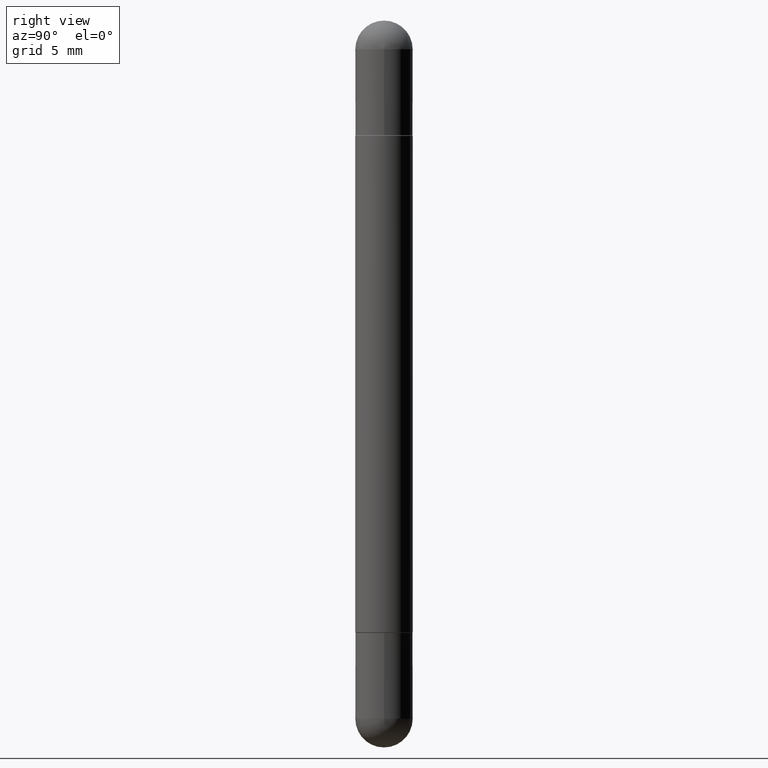
[diagram: clean part render]
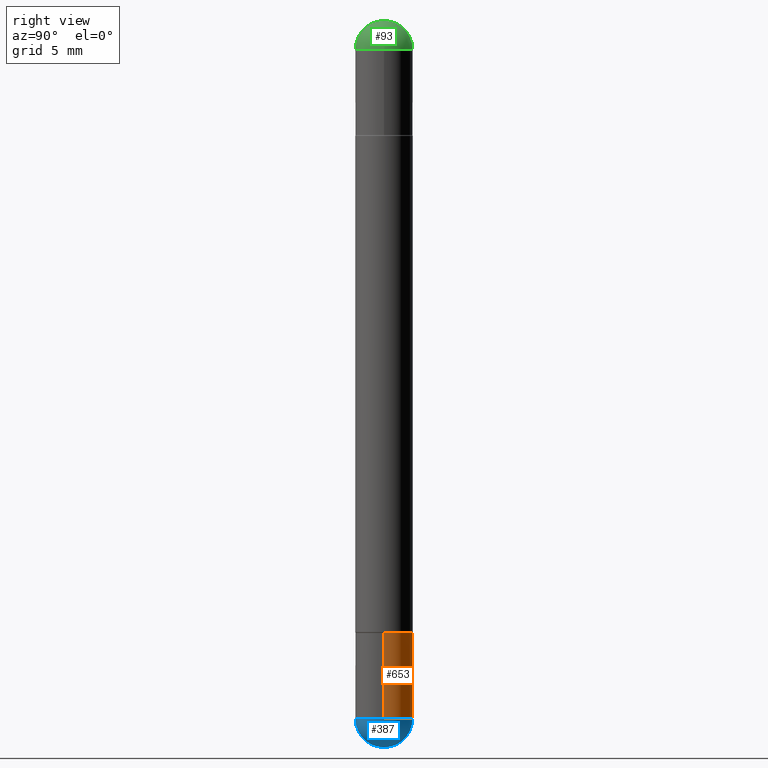
[diagram: same view with three faces highlighted in distinct colors, each labeled with its STEP entity id]
A machine part, right view with three faces highlighted in distinct colors.
Their STEP definitions:

[orange] entity #653 — the highlighted cylindrical surface (edge-blend (fillet) strip) has radius 1.4999 mm, axis along (-0, 0, 1).
#12 = CARTESIAN_POINT ( 'NONE',  ( -0.05905000000000001914, -4.288599812930171320E-15, -1.437049999999999939 ) ) ;
#18 = LINE ( 'NONE', #67, #251 ) ;
#20 = CARTESIAN_POINT ( 'NONE',  ( -0.05905000000000001914, -4.288599812930171320E-15, -1.259899999999999798 ) ) ;
#43 = VERTEX_POINT ( 'NONE', #225 ) ;
#67 = CARTESIAN_POINT ( 'NONE',  ( -0.05905000000000001914, 4.195754854663392958E-16, -2.904631170795522943E-30 ) ) ;
#104 = AXIS2_PLACEMENT_3D ( 'NONE', #762, #195, #124 ) ;
#122 = EDGE_CURVE ( 'NONE', #371, #632, #656, .T. ) ;
#124 = DIRECTION ( 'NONE',  ( 1.000000000000000000, -6.982962677686270655E-15, 0.000000000000000000 ) ) ;
#126 = CARTESIAN_POINT ( 'NONE',  ( 0.000000000000000000, 0.000000000000000000, 0.000000000000000000 ) ) ;
#131 = AXIS2_PLACEMENT_3D ( 'NONE', #454, #372, #627 ) ;
#156 = EDGE_CURVE ( 'NONE', #43, #346, #226, .T. ) ;
#158 = AXIS2_PLACEMENT_3D ( 'NONE', #301, #689, #505 ) ;
#161 = VECTOR ( 'NONE', #397, 39.37007874015748143 ) ;
#195 = DIRECTION ( 'NONE',  ( -2.445468806185136597E-29, 3.491481338843145583E-15, 1.000000000000000000 ) ) ;
#225 = CARTESIAN_POINT ( 'NONE',  ( 0.05905000000000001914, -4.811261284925853162E-15, -1.259899999999999798 ) ) ;
#226 = CIRCLE ( 'NONE', #158, 0.05905000000000001914 ) ;
#227 = AXIS2_PLACEMENT_3D ( 'NONE', #126, #558, #253 ) ;
#234 = ORIENTED_EDGE ( 'NONE', *, *, #772, .F. ) ;
#245 = CARTESIAN_POINT ( 'NONE',  ( 0.05905000000000001914, -5.120519244513884944E-15, -1.437049999999999939 ) ) ;
#251 = VECTOR ( 'NONE', #640, 39.37007874015748143 ) ;
#253 = DIRECTION ( 'NONE',  ( 1.000000000000000000, -6.982962677686266711E-15, 4.876176775795935793E-29 ) ) ;
#268 = ORIENTED_EDGE ( 'NONE', *, *, #583, .T. ) ;
#274 = CARTESIAN_POINT ( 'NONE',  ( 0.05905000000000001914, -4.123439461173741806E-16, 2.879382386107500921E-30 ) ) ;
#278 = ORIENTED_EDGE ( 'NONE', *, *, #122, .T. ) ;
#301 = CARTESIAN_POINT ( 'NONE',  ( 3.081046148912652946E-29, -4.398917338808479031E-15, -1.259899999999999798 ) ) ;
#312 = CIRCLE ( 'NONE', #131, 0.05905000000000001914 ) ;
#346 = VERTEX_POINT ( 'NONE', #20 ) ;
#368 = ORIENTED_EDGE ( 'NONE', *, *, #676, .T. ) ;
#371 = VERTEX_POINT ( 'NONE', #741 ) ;
#372 = DIRECTION ( 'NONE',  ( -2.445468806185136597E-29, 3.491481338843145583E-15, 1.000000000000000000 ) ) ;
#380 = FACE_OUTER_BOUND ( 'NONE', #486, .T. ) ;
#397 = DIRECTION ( 'NONE',  ( -2.445468806185136877E-29, 3.491481338843145188E-15, 1.000000000000000000 ) ) ;
#400 = LINE ( 'NONE', #274, #161 ) ;
#454 = CARTESIAN_POINT ( 'NONE',  ( 3.514260947928350449E-29, -5.017433257984542594E-15, -1.437049999999999939 ) ) ;
#486 = EDGE_LOOP ( 'NONE', ( #278, #268, #738, #234, #368 ) ) ;
#505 = DIRECTION ( 'NONE',  ( 1.000000000000000000, -6.982962677686270655E-15, 0.000000000000000000 ) ) ;
#515 = CYLINDRICAL_SURFACE ( 'NONE', #227, 0.05905000000000001914 ) ;
#558 = DIRECTION ( 'NONE',  ( -2.445468806185136597E-29, 3.491481338843145583E-15, 1.000000000000000000 ) ) ;
#583 = EDGE_CURVE ( 'NONE', #632, #346, #18, .T. ) ;
#627 = DIRECTION ( 'NONE',  ( 1.000000000000000000, -6.982962677686270655E-15, 0.000000000000000000 ) ) ;
#632 = VERTEX_POINT ( 'NONE', #12 ) ;
#640 = DIRECTION ( 'NONE',  ( -2.445468806185136877E-29, 3.491481338843145188E-15, 1.000000000000000000 ) ) ;
#653 = ADVANCED_FACE ( 'NONE', ( #380 ), #515, .T. ) ;
#656 = CIRCLE ( 'NONE', #104, 0.05905000000000001914 ) ;
#676 = EDGE_CURVE ( 'NONE', #815, #371, #312, .T. ) ;
#689 = DIRECTION ( 'NONE',  ( -2.445468806185136597E-29, 3.491481338843145583E-15, 1.000000000000000000 ) ) ;
#738 = ORIENTED_EDGE ( 'NONE', *, *, #156, .F. ) ;
#741 = CARTESIAN_POINT ( 'NONE',  ( 4.123439461174084467E-16, 0.05904999999999487742, -1.437050000000000161 ) ) ;
#762 = CARTESIAN_POINT ( 'NONE',  ( 3.514260947928350449E-29, -5.017433257984542594E-15, -1.437049999999999939 ) ) ;
#772 = EDGE_CURVE ( 'NONE', #815, #43, #400, .T. ) ;
#815 = VERTEX_POINT ( 'NONE', #245 ) ;

[blue] entity #387 — the highlighted spherical surface has radius 1.4999 mm.
#21 = ORIENTED_EDGE ( 'NONE', *, *, #402, .F. ) ;
#24 = ORIENTED_EDGE ( 'NONE', *, *, #150, .T. ) ;
#36 = DIRECTION ( 'NONE',  ( -7.105427357601001070E-15, -1.000000000000000000, 0.000000000000000000 ) ) ;
#40 = CARTESIAN_POINT ( 'NONE',  ( 3.183141170014464762E-29, -5.491615626124592102E-15, -1.437049999999999939 ) ) ;
#69 = VERTEX_POINT ( 'NONE', #359 ) ;
#94 = VERTEX_POINT ( 'NONE', #165 ) ;
#131 = AXIS2_PLACEMENT_3D ( 'NONE', #454, #372, #627 ) ;
#150 = EDGE_CURVE ( 'NONE', #69, #371, #559, .T. ) ;
#159 = CIRCLE ( 'NONE', #526, 0.05905000000000025506 ) ;
#164 = DIRECTION ( 'NONE',  ( 6.982962677686265922E-15, 1.000000000000000000, -4.626330217890349615E-15 ) ) ;
#165 = CARTESIAN_POINT ( 'NONE',  ( -4.195754854663065087E-16, -0.05905000000000539678, -1.437049999999999716 ) ) ;
#171 = DIRECTION ( 'NONE',  ( 1.000000000000000000, -6.982962677686270655E-15, 0.000000000000000000 ) ) ;
#191 = CARTESIAN_POINT ( 'NONE',  ( 3.183141170014464762E-29, -5.491615626124592102E-15, -1.437049999999999939 ) ) ;
#197 = ORIENTED_EDGE ( 'NONE', *, *, #508, .F. ) ;
#237 = DIRECTION ( 'NONE',  ( -1.000000000000000000, 6.982962677686265922E-15, -4.883557194083112340E-29 ) ) ;
#245 = CARTESIAN_POINT ( 'NONE',  ( 0.05905000000000001914, -5.120519244513884944E-15, -1.437049999999999939 ) ) ;
#312 = CIRCLE ( 'NONE', #131, 0.05905000000000001914 ) ;
#348 = DIRECTION ( 'NONE',  ( -1.000000000000000000, 7.105427357601001070E-15, -4.926315508542082329E-29 ) ) ;
#359 = CARTESIAN_POINT ( 'NONE',  ( 3.330070981488499955E-29, -5.694171829508798064E-15, -1.496100000000000207 ) ) ;
#371 = VERTEX_POINT ( 'NONE', #741 ) ;
#372 = DIRECTION ( 'NONE',  ( -2.445468806185136597E-29, 3.491481338843145583E-15, 1.000000000000000000 ) ) ;
#387 = ADVANCED_FACE ( 'NONE', ( #481 ), #752, .T. ) ;
#392 = AXIS2_PLACEMENT_3D ( 'NONE', #533, #673, #171 ) ;
#402 = EDGE_CURVE ( 'NONE', #94, #815, #606, .T. ) ;
#441 = DIRECTION ( 'NONE',  ( 6.982962677686266711E-15, 1.000000000000000000, 0.000000000000000000 ) ) ;
#454 = CARTESIAN_POINT ( 'NONE',  ( 3.514260947928350449E-29, -5.017433257984542594E-15, -1.437049999999999939 ) ) ;
#481 = FACE_OUTER_BOUND ( 'NONE', #747, .T. ) ;
#508 = EDGE_CURVE ( 'NONE', #69, #94, #159, .T. ) ;
#510 = AXIS2_PLACEMENT_3D ( 'NONE', #191, #703, #441 ) ;
#526 = AXIS2_PLACEMENT_3D ( 'NONE', #667, #348, #36 ) ;
#533 = CARTESIAN_POINT ( 'NONE',  ( 3.514260947928350449E-29, -5.017433257984542594E-15, -1.437049999999999939 ) ) ;
#551 = ORIENTED_EDGE ( 'NONE', *, *, #676, .F. ) ;
#559 = CIRCLE ( 'NONE', #510, 0.05905000000000025506 ) ;
#606 = CIRCLE ( 'NONE', #392, 0.05905000000000001914 ) ;
#627 = DIRECTION ( 'NONE',  ( 1.000000000000000000, -6.982962677686270655E-15, 0.000000000000000000 ) ) ;
#667 = CARTESIAN_POINT ( 'NONE',  ( 3.183141170014464762E-29, -5.491615626124592102E-15, -1.437049999999999939 ) ) ;
#673 = DIRECTION ( 'NONE',  ( -2.445468806185136597E-29, 3.491481338843145583E-15, 1.000000000000000000 ) ) ;
#676 = EDGE_CURVE ( 'NONE', #815, #371, #312, .T. ) ;
#703 = DIRECTION ( 'NONE',  ( 1.000000000000000000, -6.982962677686265922E-15, 4.883557194083112340E-29 ) ) ;
#741 = CARTESIAN_POINT ( 'NONE',  ( 4.123439461174084467E-16, 0.05904999999999487742, -1.437050000000000161 ) ) ;
#747 = EDGE_LOOP ( 'NONE', ( #197, #24, #551, #21 ) ) ;
#752 = SPHERICAL_SURFACE ( 'NONE', #780, 0.05905000000000025506 ) ;
#780 = AXIS2_PLACEMENT_3D ( 'NONE', #40, #237, #164 ) ;
#815 = VERTEX_POINT ( 'NONE', #245 ) ;

[green] entity #93 — the highlighted spherical surface has radius 1.4999 mm.
#93 = ADVANCED_FACE ( 'NONE', ( #288 ), #244, .T. ) ;
#99 = VERTEX_POINT ( 'NONE', #550 ) ;
#101 = CARTESIAN_POINT ( 'NONE',  ( 3.183141170014464762E-29, -5.491615626124592102E-15, -0.05905000000000028976 ) ) ;
#120 = CARTESIAN_POINT ( 'NONE',  ( 3.183141170014464762E-29, -5.491615626124592102E-15, -0.05905000000000028976 ) ) ;
#121 = VERTEX_POINT ( 'NONE', #247 ) ;
#142 = VERTEX_POINT ( 'NONE', #304 ) ;
#149 = DIRECTION ( 'NONE',  ( 1.000000000000000000, -6.982962677686270655E-15, 0.000000000000000000 ) ) ;
#190 = DIRECTION ( 'NONE',  ( 1.000000000000000000, -6.982962677686270655E-15, 0.000000000000000000 ) ) ;
#212 = CIRCLE ( 'NONE', #239, 0.05905000000000001914 ) ;
#239 = AXIS2_PLACEMENT_3D ( 'NONE', #770, #756, #190 ) ;
#244 = SPHERICAL_SURFACE ( 'NONE', #311, 0.05905000000000025506 ) ;
#247 = CARTESIAN_POINT ( 'NONE',  ( 4.123439461174084467E-16, 0.05904999999999487742, -0.05905000000000008159 ) ) ;
#252 = ORIENTED_EDGE ( 'NONE', *, *, #452, .F. ) ;
#279 = CARTESIAN_POINT ( 'NONE',  ( 3.514260947928350449E-29, -5.017433257984542594E-15, -0.05905000000000028976 ) ) ;
#285 = CARTESIAN_POINT ( 'NONE',  ( 3.183141170014464762E-29, -5.491615626124592102E-15, -0.05905000000000028976 ) ) ;
#288 = FACE_OUTER_BOUND ( 'NONE', #419, .T. ) ;
#291 = AXIS2_PLACEMENT_3D ( 'NONE', #101, #475, #407 ) ;
#299 = CIRCLE ( 'NONE', #291, 0.05905000000000025506 ) ;
#304 = CARTESIAN_POINT ( 'NONE',  ( 0.05905000000000001914, -5.120519244513884944E-15, -0.05905000000000028976 ) ) ;
#311 = AXIS2_PLACEMENT_3D ( 'NONE', #120, #370, #367 ) ;
#352 = ORIENTED_EDGE ( 'NONE', *, *, #701, .T. ) ;
#367 = DIRECTION ( 'NONE',  ( 6.982962677686265922E-15, 1.000000000000000000, 3.469747663417762014E-15 ) ) ;
#370 = DIRECTION ( 'NONE',  ( 1.000000000000000000, -6.982962677686265922E-15, -4.883557194083112340E-29 ) ) ;
#407 = DIRECTION ( 'NONE',  ( 6.860497997771530774E-15, 1.000000000000000000, 0.000000000000000000 ) ) ;
#419 = EDGE_LOOP ( 'NONE', ( #252, #431, #644, #352 ) ) ;
#431 = ORIENTED_EDGE ( 'NONE', *, *, #495, .T. ) ;
#452 = EDGE_CURVE ( 'NONE', #99, #121, #548, .T. ) ;
#457 = DIRECTION ( 'NONE',  ( 2.445468806185136597E-29, -3.491481338843145583E-15, 1.000000000000000000 ) ) ;
#475 = DIRECTION ( 'NONE',  ( 1.000000000000000000, -6.860497997771530774E-15, -4.840798879624142912E-29 ) ) ;
#495 = EDGE_CURVE ( 'NONE', #99, #782, #299, .T. ) ;
#543 = DIRECTION ( 'NONE',  ( -1.000000000000000000, 6.982962677686265922E-15, 4.883557194083112340E-29 ) ) ;
#548 = CIRCLE ( 'NONE', #657, 0.05905000000000025506 ) ;
#550 = CARTESIAN_POINT ( 'NONE',  ( 3.330070981488499955E-29, -5.694171829508798064E-15, -3.414809992080329023E-17 ) ) ;
#590 = CIRCLE ( 'NONE', #700, 0.05905000000000001914 ) ;
#644 = ORIENTED_EDGE ( 'NONE', *, *, #672, .T. ) ;
#650 = CARTESIAN_POINT ( 'NONE',  ( -4.051124067683763770E-16, -0.05905000000000539678, -0.05905000000000049099 ) ) ;
#655 = DIRECTION ( 'NONE',  ( -6.982962677686266711E-15, -1.000000000000000000, 0.000000000000000000 ) ) ;
#657 = AXIS2_PLACEMENT_3D ( 'NONE', #285, #543, #655 ) ;
#672 = EDGE_CURVE ( 'NONE', #782, #142, #212, .T. ) ;
#700 = AXIS2_PLACEMENT_3D ( 'NONE', #279, #457, #149 ) ;
#701 = EDGE_CURVE ( 'NONE', #142, #121, #590, .T. ) ;
#756 = DIRECTION ( 'NONE',  ( 2.445468806185136597E-29, -3.491481338843145583E-15, 1.000000000000000000 ) ) ;
#770 = CARTESIAN_POINT ( 'NONE',  ( 3.514260947928350449E-29, -5.017433257984542594E-15, -0.05905000000000028976 ) ) ;
#782 = VERTEX_POINT ( 'NONE', #650 ) ;